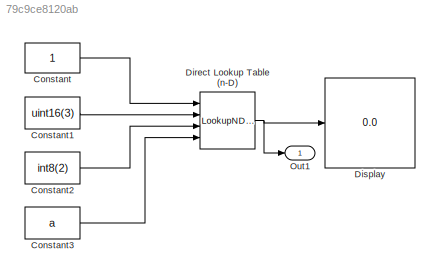
MODEL slx_79c9ce8120ab
KIND model
CONFIG AbsTol = auto
CONFIG EnableMultiTasking = on
CONFIG FixedStep = 0.100000
CONFIG MaxStep = auto
CONFIG MinStep = auto
CONFIG PreLoadFcn = a = reshape(1:2800, [4 5 20 7]);
CONFIG RelTol = 1e-3
CONFIG SampleTimeConstraint = Unconstrained
CONFIG Solver = FixedStepDiscrete
CONFIG SolverName = FixedStepDiscrete
CONFIG StartTime = 0.0
CONFIG StopTime = 10.0
BLOCK [Constant] Constant
BLOCK [Constant] Constant1
  Value = uint16(3)
BLOCK [Constant] Constant2
  Value = int8(2)
BLOCK [Constant] Constant3
  OutDataTypeStr = double
  Value = a
BLOCK [LookupNDDirect] Direct Lookup Table (n-D)
  InputsSelectThisObjectFromTable = Column
  NumberOfTableDimensions = 4
  Ports = [4, 1]
  TableIsInput = on
BLOCK [Display] Display
  Decimation = 1
  Ports = [1]
BLOCK [Outport] Out1
  IconDisplay = Port number
LINE Constant1:1 -> Direct Lookup Table (n-D):2
LINE Constant2:1 -> Direct Lookup Table (n-D):3
LINE Constant3:1 -> Direct Lookup Table (n-D):4
LINE Constant:1 -> Direct Lookup Table (n-D):1
NET Direct Lookup Table (n-D):1 -> Display:1, Out1:1
note: NET lines group one-source signal fan-out (src -> all destinations, sorted); 1:1 wires keep LINE
